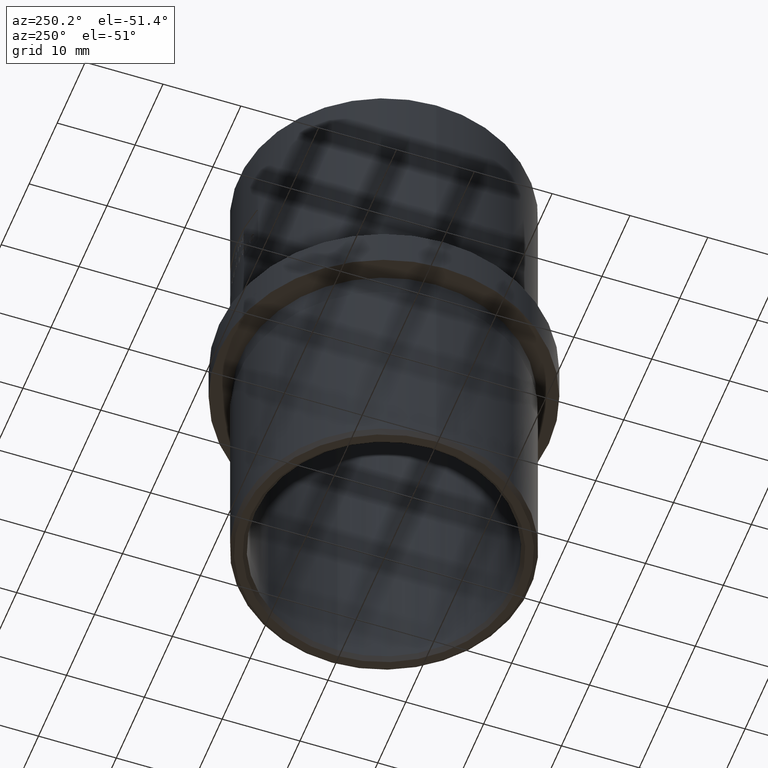
[diagram: clean part render]
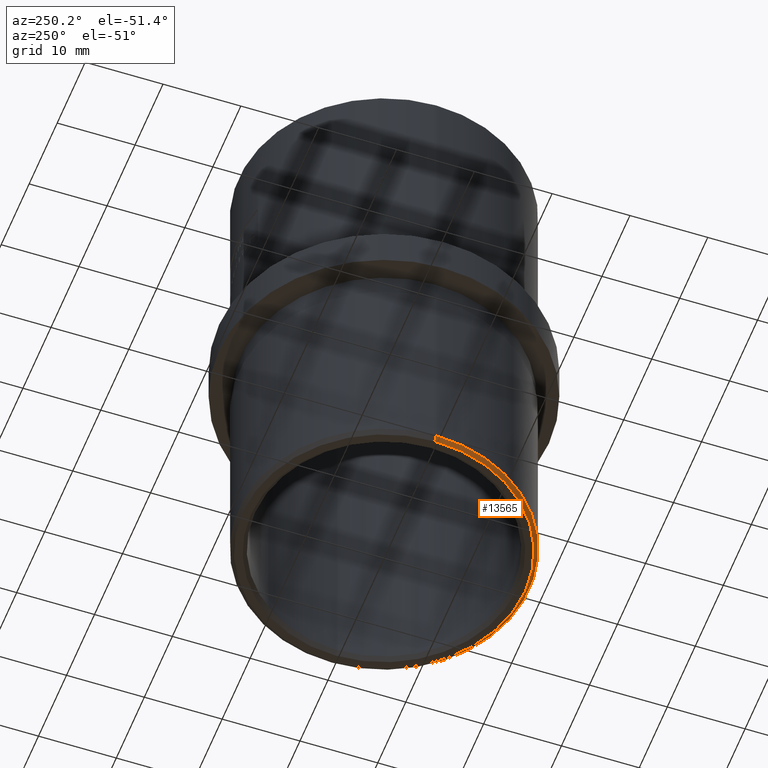
[diagram: same view with one face highlighted and labeled with its STEP entity id]
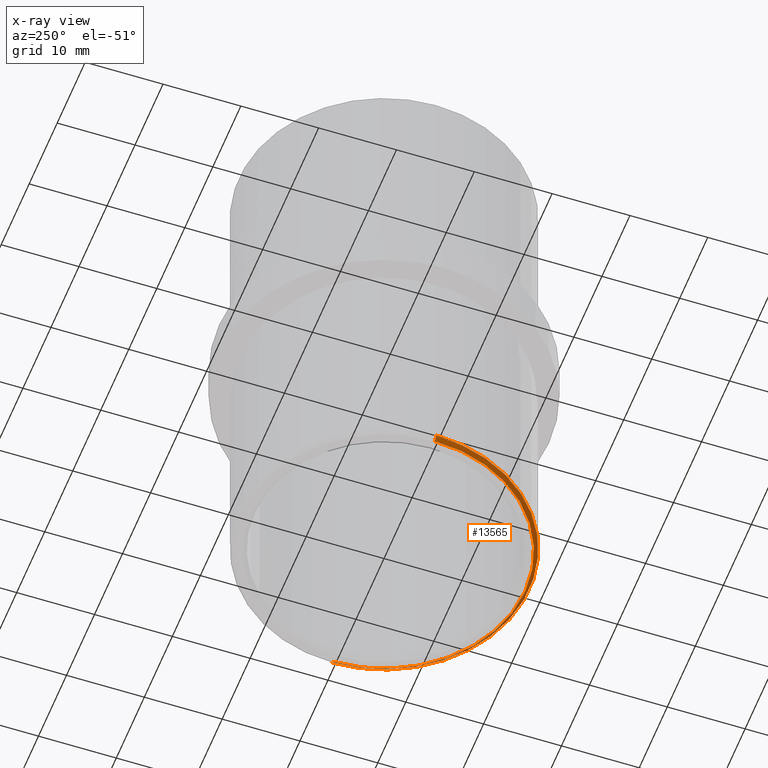
[diagram: x-ray of the same camera — body ghosted, the highlighted face saturated]
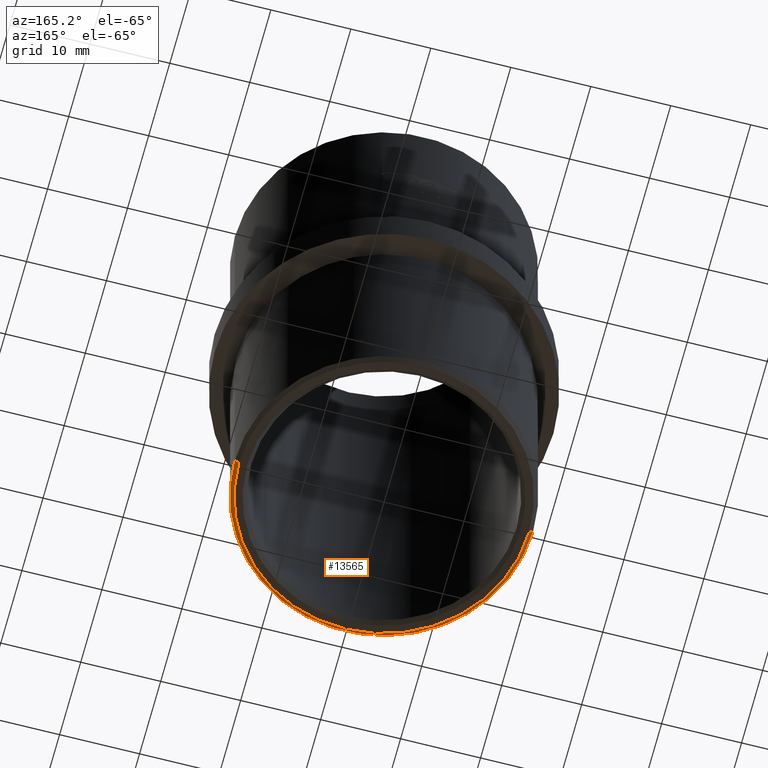
[diagram: same view with one face highlighted and labeled with its STEP entity id]
A machine part, auxiliary view. The second image highlights one B-rep face of the part: STEP entity #13565.
The next image is the same camera in x-ray: the body ghosted, the highlighted face saturated — about 0% of this face is hidden behind the body in this view.
A second angle (auxiliary view) of the same face is appended — the face is thin or edge-on in the first view.
In plain terms, the highlighted conical surface has half-angle 45 deg.
Its self-contained STEP definition (entity closure, byte-faithful):
#201 = DIRECTION ( 'NONE',  ( 1.000000000000000000, 0.0000000000000000000, 0.0000000000000000000 ) ) ;
#1022 = EDGE_CURVE ( 'NONE', #18750, #16806, #18973, .T. ) ;
#1299 = DIRECTION ( 'NONE',  ( 0.0000000000000000000, 0.0000000000000000000, -1.000000000000000000 ) ) ;
#1697 = CARTESIAN_POINT ( 'NONE',  ( 18.65000000000000200, 0.0000000000000000000, -32.00000000000000000 ) ) ;
#2133 = CARTESIAN_POINT ( 'NONE',  ( -18.15000000000000600, 2.253350110431130400E-015, -32.50000000000000000 ) ) ;
#2971 = DIRECTION ( 'NONE',  ( -1.000000000000000000, 0.0000000000000000000, 0.0000000000000000000 ) ) ;
#3079 = DIRECTION ( 'NONE',  ( -0.7071067811865451300, 8.659560562354903300E-017, 0.7071067811865500200 ) ) ;
#3177 = CARTESIAN_POINT ( 'NONE',  ( 18.65000000000000200, -2.283966280409814200E-015, -32.00000000000000000 ) ) ;
#5081 = ORIENTED_EDGE ( 'NONE', *, *, #20809, .F. ) ;
#5092 = DIRECTION ( 'NONE',  ( -0.0000000000000000000, -0.0000000000000000000, 1.000000000000000000 ) ) ;
#7286 = DIRECTION ( 'NONE',  ( 0.7071067811865451300, 0.0000000000000000000, 0.7071067811865500200 ) ) ;
#7425 = CONICAL_SURFACE ( 'NONE', #21555, 18.65000000000000200, 0.7853981633974447300 ) ;
#8449 = CARTESIAN_POINT ( 'NONE',  ( 0.0000000000000000000, 0.0000000000000000000, -32.00000000000000000 ) ) ;
#8708 = EDGE_CURVE ( 'NONE', #10119, #16806, #16299, .T. ) ;
#8848 = EDGE_LOOP ( 'NONE', ( #14475, #5081, #14367, #14014 ) ) ;
#9659 = VECTOR ( 'NONE', #7286, 1000.000000000000100 ) ;
#10119 = VERTEX_POINT ( 'NONE', #11919 ) ;
#10419 = CARTESIAN_POINT ( 'NONE',  ( 18.15000000000000600, 0.0000000000000000000, -32.50000000000000000 ) ) ;
#10705 = LINE ( 'NONE', #18365, #21327 ) ;
#11431 = FACE_OUTER_BOUND ( 'NONE', #8848, .T. ) ;
#11919 = CARTESIAN_POINT ( 'NONE',  ( -18.65000000000000200, 0.0000000000000000000, -32.00000000000000000 ) ) ;
#13410 = DIRECTION ( 'NONE',  ( -0.0000000000000000000, -0.0000000000000000000, 1.000000000000000000 ) ) ;
#13565 = ADVANCED_FACE ( 'NONE', ( #11431 ), #7425, .T. ) ;
#13699 = AXIS2_PLACEMENT_3D ( 'NONE', #15269, #5092, #15841 ) ;
#14014 = ORIENTED_EDGE ( 'NONE', *, *, #8708, .F. ) ;
#14367 = ORIENTED_EDGE ( 'NONE', *, *, #1022, .T. ) ;
#14475 = ORIENTED_EDGE ( 'NONE', *, *, #15747, .F. ) ;
#14668 = CARTESIAN_POINT ( 'NONE',  ( 0.0000000000000000000, 0.0000000000000000000, -32.50000000000000000 ) ) ;
#14704 = CIRCLE ( 'NONE', #17981, 18.15000000000000600 ) ;
#15269 = CARTESIAN_POINT ( 'NONE',  ( 0.0000000000000000000, 0.0000000000000000000, -32.00000000000000000 ) ) ;
#15747 = EDGE_CURVE ( 'NONE', #21928, #10119, #10705, .T. ) ;
#15841 = DIRECTION ( 'NONE',  ( -1.000000000000000000, 0.0000000000000000000, 0.0000000000000000000 ) ) ;
#16299 = CIRCLE ( 'NONE', #13699, 18.65000000000000200 ) ;
#16806 = VERTEX_POINT ( 'NONE', #3177 ) ;
#17981 = AXIS2_PLACEMENT_3D ( 'NONE', #14668, #1299, #2971 ) ;
#18365 = CARTESIAN_POINT ( 'NONE',  ( -18.65000000000000200, 2.283966280409814200E-015, -32.00000000000000000 ) ) ;
#18750 = VERTEX_POINT ( 'NONE', #10419 ) ;
#18973 = LINE ( 'NONE', #1697, #9659 ) ;
#20809 = EDGE_CURVE ( 'NONE', #18750, #21928, #14704, .T. ) ;
#21327 = VECTOR ( 'NONE', #3079, 1000.000000000000100 ) ;
#21555 = AXIS2_PLACEMENT_3D ( 'NONE', #8449, #13410, #201 ) ;
#21928 = VERTEX_POINT ( 'NONE', #2133 ) ;